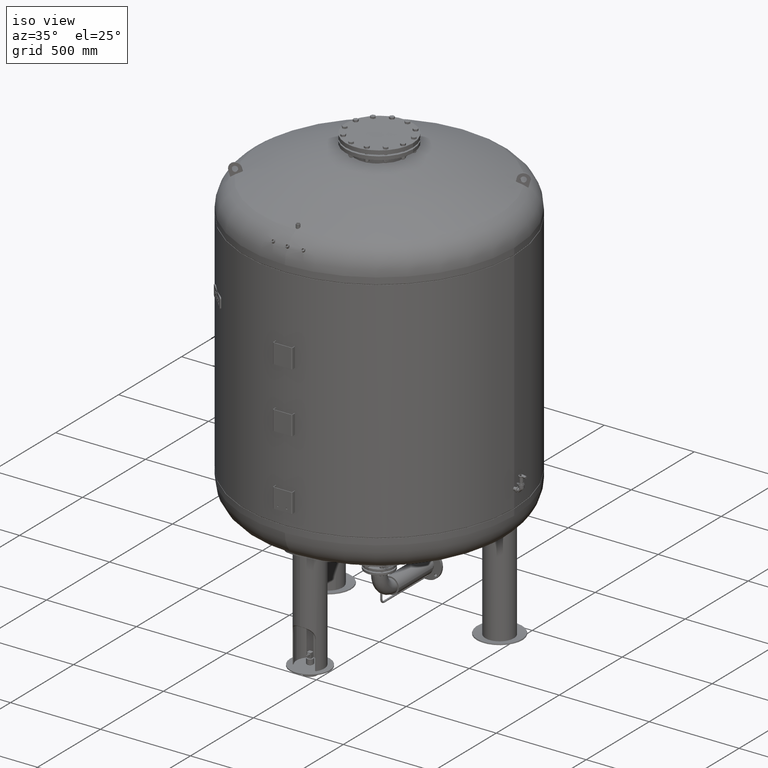
[diagram: clean part render]
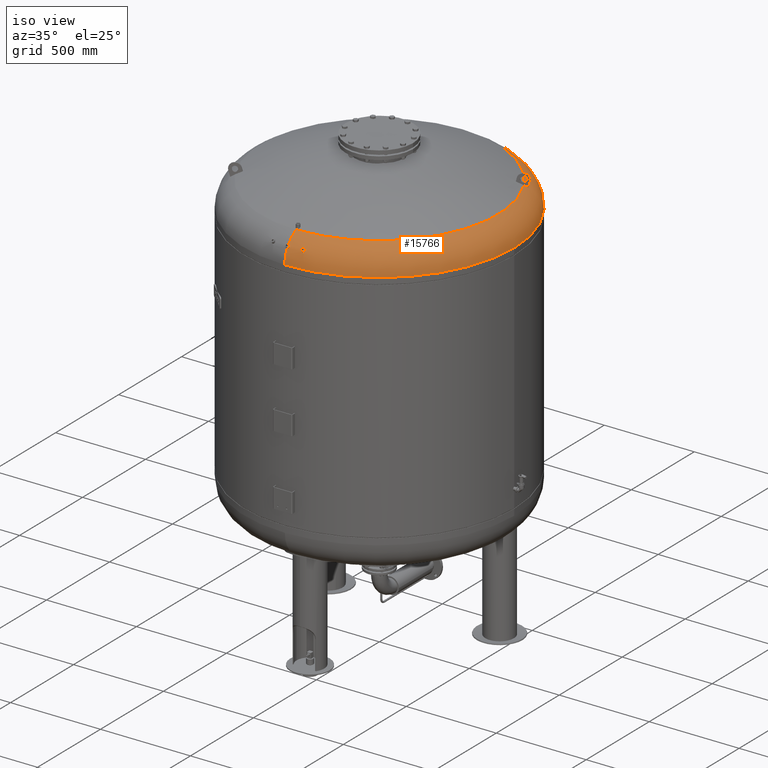
[diagram: same view with one face highlighted and labeled with its STEP entity id]
A machine part, iso view. The second image highlights one B-rep face of the part: STEP entity #15766.
In plain terms, the highlighted toroidal blend (fillet) surface has major radius 591 mm and minor (blend) radius 159 mm.
Its self-contained STEP definition (entity closure, byte-faithful):
#14677=CARTESIAN_POINT('',(3.122792E-014,-731.140193061976330,2204.873758403027800));
#14678=VERTEX_POINT('',#14677);
#14694=CARTESIAN_POINT('',(-4.552190E-014,-721.312989634743420,2220.864059968686900));
#14695=VERTEX_POINT('',#14694);
#14872=CARTESIAN_POINT('',(80.324619526775621,-725.631664467896030,2206.848132170746300));
#14873=VERTEX_POINT('',#14872);
#14889=CARTESIAN_POINT('',(85.635383923202397,-715.574285877654120,2221.762554782133100));
#14890=VERTEX_POINT('',#14889);
#14897=CARTESIAN_POINT('',(82.418225282518961,-715.625413797499390,2222.218126071017700));
#14898=VERTEX_POINT('',#14897);
#14899=CARTESIAN_POINT('',(85.635383923202397,-715.574285877654120,2221.762554782133100));
#14900=CARTESIAN_POINT('',(84.592095150122077,-715.479768309782000,2222.069582553987900));
#14901=CARTESIAN_POINT('',(83.502717674649233,-715.496735823227250,2222.223376532035200));
#14902=CARTESIAN_POINT('',(82.418225282518975,-715.625413797499500,2222.218126071017200));
#14903=B_SPLINE_CURVE_WITH_KNOTS('',3,(#14899,#14900,#14901,#14902),.UNSPECIFIED.,.F.,.U.,(4,4),(55.416614716824512,58.692951700855467),.UNSPECIFIED.);
#14904=EDGE_CURVE('',#14890,#14898,#14903,.T.);
#14906=CARTESIAN_POINT('',(82.418225282518961,-715.625413797499390,2222.218126071017200));
#14907=CARTESIAN_POINT('',(81.211133854247237,-715.768638481119750,2222.212282059076600));
#14908=CARTESIAN_POINT('',(80.033329142601900,-716.047532308479730,2222.009588538828200));
#14909=CARTESIAN_POINT('',(77.853673223190242,-716.844704672272770,2221.227415632584800));
#14910=CARTESIAN_POINT('',(76.876746910767665,-717.358082565862220,2220.650377868647400));
#14911=CARTESIAN_POINT('',(75.331081534016363,-718.495059648504930,2219.244562110200600));
#14912=CARTESIAN_POINT('',(74.751283283861014,-719.098150574058420,2218.448759468116400));
#14913=CARTESIAN_POINT('',(74.001691080207181,-720.301731486084010,2216.757779434901700));
#14914=CARTESIAN_POINT('',(73.810291241882453,-720.890668086018310,2215.885934186303500));
#14915=CARTESIAN_POINT('',(73.779981261854303,-722.027310048809680,2214.109997290660900));
#14916=CARTESIAN_POINT('',(73.936507986794140,-722.568132741438150,2213.217941801339300));
#14917=CARTESIAN_POINT('',(74.606133414307180,-723.598107309736970,2211.419907378629400));
#14918=CARTESIAN_POINT('',(75.141752945350873,-724.072117933369780,2210.531807235835000));
#14919=CARTESIAN_POINT('',(76.601439139230166,-724.890507929086990,2208.872002348968600));
#14920=CARTESIAN_POINT('',(77.541017307508142,-725.212857365886750,2208.132453735247100));
#14921=CARTESIAN_POINT('',(79.156540886265887,-725.520417990257780,2207.277320264957300));
#14922=CARTESIAN_POINT('',(79.731089469051781,-725.592267128844470,2207.036580947696600));
#14923=CARTESIAN_POINT('',(80.324619526775621,-725.631664467896030,2206.848132170746300));
#14924=B_SPLINE_CURVE_WITH_KNOTS('',3,(#14906,#14907,#14908,#14909,#14910,#14911,#14912,#14913,#14914,#14915,#14916,#14917,#14918,#14919,#14920,#14921,#14922,#14923),.UNSPECIFIED.,.F.,.U.,(4,2,2,2,2,2,2,2,4),(0.0,3.646718334081638,7.346398987803632,10.780619860109260,13.964018717005052,17.104140581734100,20.494714130028250,24.174081569606379,26.055942591926513),.UNSPECIFIED.);
#14925=EDGE_CURVE('',#14898,#14873,#14924,.T.);
#15463=CARTESIAN_POINT('',(750.0,-5.423428E-014,2129.762332584101800));
#15464=VERTEX_POINT('',#15463);
#15488=CARTESIAN_POINT('',(1.267436E-013,750.0,2129.762332584101800));
#15489=VERTEX_POINT('',#15488);
#15497=CARTESIAN_POINT('',(1.459986E-014,-5.423428E-014,2129.762332584101800));
#15498=DIRECTION('',(0.0,0.0,-1.0));
#15499=DIRECTION('',(1.0,0.0,0.0));
#15500=AXIS2_PLACEMENT_3D('',#15497,#15498,#15499);
#15501=CIRCLE('',#15500,750.0);
#15502=EDGE_CURVE('',#15489,#15464,#15501,.T.);
#15612=CARTESIAN_POINT('',(3.489809E-014,-5.423428E-014,2129.762332584101800));
#15613=DIRECTION('',(4.945121E-017,-1.836970E-016,-1.0));
#15614=DIRECTION('',(0.0,-1.0,0.0));
#15615=AXIS2_PLACEMENT_3D('',#15612,#15613,#15614);
#15616=TOROIDAL_SURFACE('',#15615,591.0,159.0);
#15617=CARTESIAN_POINT('',(3.489809E-014,-750.0,2129.762332584101800));
#15618=VERTEX_POINT('',#15617);
#15619=CARTESIAN_POINT('',(3.489809E-014,-591.0,2129.762332584101800));
#15620=DIRECTION('',(-1.0,0.0,0.0));
#15621=DIRECTION('',(0.0,-1.0,0.0));
#15622=AXIS2_PLACEMENT_3D('',#15619,#15620,#15621);
#15623=CIRCLE('',#15622,159.0);
#15624=EDGE_CURVE('',#15618,#14678,#15623,.T.);
#15625=ORIENTED_EDGE('',*,*,#15624,.F.);
#15626=CARTESIAN_POINT('',(1.459986E-014,-5.423428E-014,2129.762332584101800));
#15627=DIRECTION('',(0.0,0.0,-1.0));
#15628=DIRECTION('',(1.0,0.0,0.0));
#15629=AXIS2_PLACEMENT_3D('',#15626,#15627,#15628);
#15630=CIRCLE('',#15629,750.0);
#15631=EDGE_CURVE('',#15464,#15618,#15630,.T.);
#15632=ORIENTED_EDGE('',*,*,#15631,.F.);
#15633=ORIENTED_EDGE('',*,*,#15502,.F.);
#15634=CARTESIAN_POINT('',(1.087271E-013,660.606666666666800,2272.716562866229200));
#15635=VERTEX_POINT('',#15634);
#15636=CARTESIAN_POINT('',(1.072723E-013,591.0,2129.762332584101800));
#15637=DIRECTION('',(1.0,0.0,0.0));
#15638=DIRECTION('',(0.0,1.0,0.0));
#15639=AXIS2_PLACEMENT_3D('',#15636,#15637,#15638);
#15640=CIRCLE('',#15639,159.0);
#15641=EDGE_CURVE('',#15489,#15635,#15640,.T.);
#15642=ORIENTED_EDGE('',*,*,#15641,.T.);
#15643=CARTESIAN_POINT('',(570.596255916202270,332.898003566943030,2272.716562866229200));
#15644=VERTEX_POINT('',#15643);
#15645=CARTESIAN_POINT('',(7.530601E-015,-2.797401E-014,2272.716562866229200));
#15646=DIRECTION('',(0.0,0.0,-1.0));
#15647=DIRECTION('',(1.0,0.0,0.0));
#15648=AXIS2_PLACEMENT_3D('',#15645,#15646,#15647);
#15649=CIRCLE('',#15648,660.606666666666800);
#15650=EDGE_CURVE('',#15635,#15644,#15649,.T.);
#15651=ORIENTED_EDGE('',*,*,#15650,.T.);
#15652=CARTESIAN_POINT('',(588.588482349337030,343.285820341434260,2260.575471650438900));
#15653=VERTEX_POINT('',#15652);
#15654=CARTESIAN_POINT('',(570.596255916202270,332.898003566943030,2272.716562866229200));
#15655=CARTESIAN_POINT('',(572.054041405254220,333.739656411467930,2271.896943261032400));
#15656=CARTESIAN_POINT('',(573.514867502697370,334.583064752065810,2271.038760350182700));
#15657=CARTESIAN_POINT('',(576.976511612975400,336.581645910973690,2268.912932457119000));
#15658=CARTESIAN_POINT('',(578.974781685762880,337.735347675411160,2267.612126014599200));
#15659=CARTESIAN_POINT('',(582.931774475123920,340.019918527530190,2264.881544856047600));
#15660=CARTESIAN_POINT('',(584.890496100696050,341.150786985321820,2263.451768031998700));
#15661=CARTESIAN_POINT('',(587.410277309621960,342.605583344594150,2261.507652363015000));
#15662=CARTESIAN_POINT('',(588.001091399301120,342.946690018311470,2261.044094471851200));
#15663=CARTESIAN_POINT('',(588.588482349337030,343.285820341434260,2260.575471650438900));
#15664=B_SPLINE_CURVE_WITH_KNOTS('',3,(#15654,#15655,#15656,#15657,#15658,#15659,#15660,#15661,#15662,#15663),.UNSPECIFIED.,.F.,.U.,(4,2,2,2,4),(774.656358350488740,780.010685689572260,787.369273058092740,794.727860426613230,796.996990205935960),.UNSPECIFIED.);
#15665=EDGE_CURVE('',#15644,#15653,#15664,.T.);
#15666=ORIENTED_EDGE('',*,*,#15665,.T.);
#15667=CARTESIAN_POINT('',(591.588482349336690,338.089667918727570,2260.575471650438900));
#15668=VERTEX_POINT('',#15667);
#15669=CARTESIAN_POINT('',(588.588482349337030,343.285820341434260,2260.575471650438900));
#15670=CARTESIAN_POINT('',(589.090111222559810,342.418391231101340,2260.578030124753200));
#15671=CARTESIAN_POINT('',(589.590425441357980,341.552525995023070,2260.579301453786200));
#15672=CARTESIAN_POINT('',(590.089401200233620,340.688274628905390,2260.579301453786200));
#15673=CARTESIAN_POINT('',(590.588376959112570,339.824023262781680,2260.579301453786200));
#15674=CARTESIAN_POINT('',(591.088081140414260,338.957805821382750,2260.578030124753200));
#15675=CARTESIAN_POINT('',(591.588482349336690,338.089667918727570,2260.575471650438900));
#15676=B_SPLINE_CURVE_WITH_KNOTS('',3,(#15669,#15670,#15671,#15672,#15673,#15674,#15675),.UNSPECIFIED.,.F.,.U.,(4,3,4),(-2.993854553253430,0.0,2.993854553273963),.UNSPECIFIED.);
#15677=EDGE_CURVE('',#15653,#15668,#15676,.T.);
#15678=ORIENTED_EDGE('',*,*,#15677,.T.);
#15679=CARTESIAN_POINT('',(573.596255916202270,327.701851144236400,2272.716562866229200));
#15680=VERTEX_POINT('',#15679);
#15681=CARTESIAN_POINT('',(591.588482349336690,338.089667918727570,2260.575471650438900));
#15682=CARTESIAN_POINT('',(591.001034993602270,337.750505029759610,2261.044139472540300));
#15683=CARTESIAN_POINT('',(590.410163811151510,337.409365393515030,2261.507741414689900));
#15684=CARTESIAN_POINT('',(587.890327860486420,335.954537429084780,2263.451893026950100));
#15685=CARTESIAN_POINT('',(585.931609407500670,334.823670802986780,2264.881663004374300));
#15686=CARTESIAN_POINT('',(581.974623379374860,332.539103854468750,2267.612231014925300));
#15687=CARTESIAN_POINT('',(579.976356895234860,331.385404161938030,2268.913031156073000));
#15688=CARTESIAN_POINT('',(576.514766784393940,329.386854179619720,2271.038819520509200));
#15689=CARTESIAN_POINT('',(575.053991207979040,328.543475007350930,2271.896971483751700));
#15690=CARTESIAN_POINT('',(573.596255916202270,327.701851144236400,2272.716562866229200));
#15691=B_SPLINE_CURVE_WITH_KNOTS('',3,(#15681,#15682,#15683,#15684,#15685,#15686,#15687,#15688,#15689,#15690),.UNSPECIFIED.,.F.,.U.,(4,2,2,2,4),(144.901644365231360,147.170992146182750,154.529560626149700,161.888129106116650,167.242268222433860),.UNSPECIFIED.);
#15692=EDGE_CURVE('',#15668,#15680,#15691,.T.);
#15693=ORIENTED_EDGE('',*,*,#15692,.T.);
#15694=CARTESIAN_POINT('',(2.782883E-014,-660.606666666666800,2272.716562866229200));
#15695=VERTEX_POINT('',#15694);
#15696=CARTESIAN_POINT('',(7.530601E-015,-2.797401E-014,2272.716562866229200));
#15697=DIRECTION('',(0.0,0.0,-1.0));
#15698=DIRECTION('',(1.0,0.0,0.0));
#15699=AXIS2_PLACEMENT_3D('',#15696,#15697,#15698);
#15700=CIRCLE('',#15699,660.606666666666800);
#15701=EDGE_CURVE('',#15680,#15695,#15700,.T.);
#15702=ORIENTED_EDGE('',*,*,#15701,.T.);
#15703=CARTESIAN_POINT('',(3.489809E-014,-591.0,2129.762332584101800));
#15704=DIRECTION('',(-1.0,0.0,0.0));
#15705=DIRECTION('',(0.0,-1.0,0.0));
#15706=AXIS2_PLACEMENT_3D('',#15703,#15704,#15705);
#15707=CIRCLE('',#15706,159.0);
#15708=EDGE_CURVE('',#14695,#15695,#15707,.T.);
#15709=ORIENTED_EDGE('',*,*,#15708,.F.);
#15710=CARTESIAN_POINT('',(3.122792E-014,-731.140193061976330,2204.873758403027800));
#15711=CARTESIAN_POINT('',(0.057657512681151,-731.140193061976330,2204.873758403027800));
#15712=CARTESIAN_POINT('',(0.115342753390980,-731.139926967138310,2204.874242153138800));
#15713=CARTESIAN_POINT('',(1.370994247352646,-731.128329676279690,2204.895324945747700));
#15714=CARTESIAN_POINT('',(2.550696905113760,-731.002856720951400,2205.124223991328600));
#15715=CARTESIAN_POINT('',(4.770670746990790,-730.529672242895230,2205.976538361409400));
#15716=CARTESIAN_POINT('',(5.782788601115631,-730.181846701405220,2206.599552452901700));
#15717=CARTESIAN_POINT('',(7.415153016316103,-729.334644906491580,2208.087861202894600));
#15718=CARTESIAN_POINT('',(8.045293616802772,-728.854350355824180,2208.920827512777600));
#15719=CARTESIAN_POINT('',(8.853711341418409,-727.888611831786310,2210.561568614542000));
#15720=CARTESIAN_POINT('',(9.090142437814508,-727.425103557546320,2211.337726622414700));
#15721=CARTESIAN_POINT('',(9.287260539900800,-726.499770309923410,2212.861439544907600));
#15722=CARTESIAN_POINT('',(9.265074449871836,-726.043949167648980,2213.600840282085300));
#15723=CARTESIAN_POINT('',(8.973568366567891,-725.098956888440510,2215.111280096082300));
#15724=CARTESIAN_POINT('',(8.684213468884783,-724.615488560750800,2215.871207435359800));
#15725=CARTESIAN_POINT('',(7.734947452341693,-723.579974660486760,2217.476551918206000));
#15726=CARTESIAN_POINT('',(7.005487491290436,-723.054006829728910,2218.275343219548200));
#15727=CARTESIAN_POINT('',(5.260316547378206,-722.194279083278270,2219.566272979116500));
#15728=CARTESIAN_POINT('',(4.273464259762934,-721.861372702501280,2220.058282219715200));
#15729=CARTESIAN_POINT('',(2.177841876065024,-721.423439426855790,2220.703004258363800));
#15730=CARTESIAN_POINT('',(1.093419321610635,-721.312989634743420,2220.864059968686900));
#15731=CARTESIAN_POINT('',(-4.552190E-014,-721.312989634743420,2220.864059968686900));
#15732=B_SPLINE_CURVE_WITH_KNOTS('',3,(#15710,#15711,#15712,#15713,#15714,#15715,#15716,#15717,#15718,#15719,#15720,#15721,#15722,#15723,#15724,#15725,#15726,#15727,#15728,#15729,#15730,#15731),.UNSPECIFIED.,.F.,.U.,(4,2,2,2,2,2,2,2,2,2,4),(29.349581211693941,29.522750813462714,33.117678586733895,36.796643350888004,40.213686568299714,42.999161385988110,45.591792753847557,48.412890025641090,51.989047296465195,55.416142810113719,58.696400774945758),.UNSPECIFIED.);
#15733=EDGE_CURVE('',#14678,#14695,#15732,.T.);
#15734=ORIENTED_EDGE('',*,*,#15733,.F.);
#15735=EDGE_LOOP('',(#15625,#15632,#15633,#15642,#15651,#15666,#15678,#15693,#15702,#15709,#15734));
#15736=FACE_OUTER_BOUND('',#15735,.T.);
#15737=ORIENTED_EDGE('',*,*,#14925,.F.);
#15738=ORIENTED_EDGE('',*,*,#14904,.F.);
#15739=CARTESIAN_POINT('',(80.324619526775621,-725.631664467896030,2206.848132170746300));
#15740=CARTESIAN_POINT('',(80.836460813528035,-725.665639469586950,2206.685619989221300));
#15741=CARTESIAN_POINT('',(81.362417253469658,-725.675480591470200,2206.561992093079000));
#15742=CARTESIAN_POINT('',(83.062595083519128,-725.629091237117220,2206.299545290247800));
#15743=CARTESIAN_POINT('',(84.242931271470894,-725.482021757286820,2206.319509486723300));
#15744=CARTESIAN_POINT('',(86.545978748615113,-724.966368683784370,2206.759955149510900));
#15745=CARTESIAN_POINT('',(87.640103965526961,-724.595955389998840,2207.189179440340500));
#15746=CARTESIAN_POINT('',(89.581750827765489,-723.664339173513440,2208.412310408740300));
#15747=CARTESIAN_POINT('',(90.402628841048255,-723.106743522768740,2209.204290530698900));
#15748=CARTESIAN_POINT('',(91.562543574441378,-721.939721271351570,2210.933840794016800));
#15749=CARTESIAN_POINT('',(91.933383796096422,-721.348859336639290,2211.837106947663000));
#15750=CARTESIAN_POINT('',(92.265952949030478,-720.190800092448060,2213.644681446001000));
#15751=CARTESIAN_POINT('',(92.255866627002987,-719.632500626479900,2214.532151413802700));
#15752=CARTESIAN_POINT('',(91.890567198759328,-718.547645037983220,2216.287955497912700));
#15753=CARTESIAN_POINT('',(91.533337545003462,-718.029339697865450,2217.143408301554200));
#15754=CARTESIAN_POINT('',(90.438103113286189,-717.043111928540500,2218.818383407302500));
#15755=CARTESIAN_POINT('',(89.671533450964276,-716.597546969692420,2219.606234845488400));
#15756=CARTESIAN_POINT('',(87.850505110485102,-715.917598072399070,2220.904553216511000));
#15757=CARTESIAN_POINT('',(86.817277463416303,-715.687431608038200,2221.405953136747000));
#15758=CARTESIAN_POINT('',(85.685248681661704,-715.578869416350240,2221.747784706439700));
#15759=CARTESIAN_POINT('',(85.660329484668125,-715.576545840437010,2221.755213593046800));
#15760=CARTESIAN_POINT('',(85.635383923202397,-715.574285877654120,2221.762554782133100));
#15761=B_SPLINE_CURVE_WITH_KNOTS('',3,(#15739,#15740,#15741,#15742,#15743,#15744,#15745,#15746,#15747,#15748,#15749,#15750,#15751,#15752,#15753,#15754,#15755,#15756,#15757,#15758,#15759,#15760),.UNSPECIFIED.,.F.,.U.,(4,2,2,2,2,2,2,2,2,2,4),(26.055942591926513,27.678799184644781,31.219489836587044,34.881426856872338,38.647990749969111,42.039977392704102,45.162054324610359,48.325711079185957,51.853968486547998,55.338275844858657,55.416614716824512),.UNSPECIFIED.);
#15762=EDGE_CURVE('',#14873,#14890,#15761,.T.);
#15763=ORIENTED_EDGE('',*,*,#15762,.F.);
#15764=EDGE_LOOP('',(#15737,#15738,#15763));
#15765=FACE_BOUND('',#15764,.T.);
#15766=ADVANCED_FACE('',(#15736,#15765),#15616,.T.);